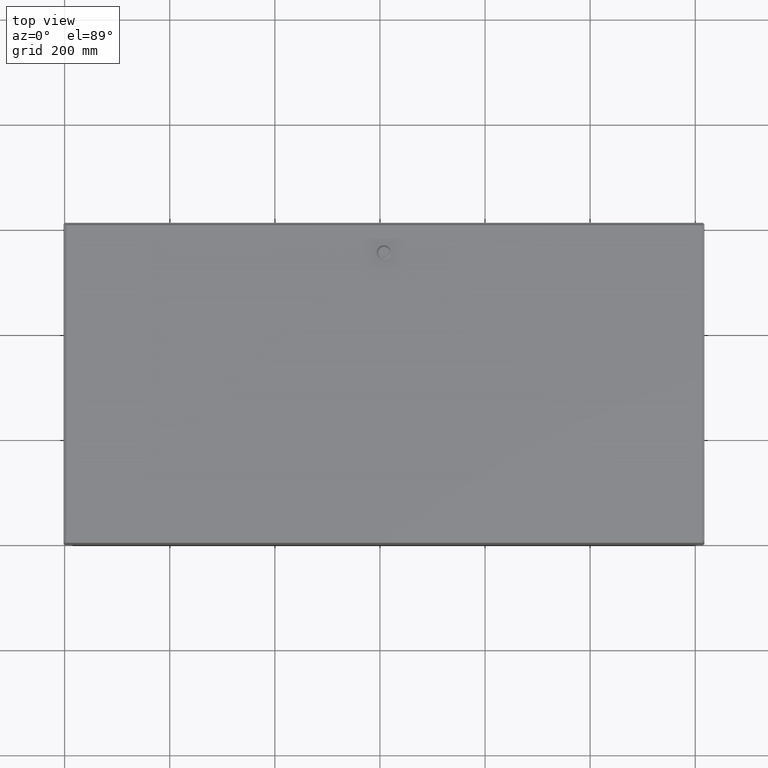
[diagram: clean part render]
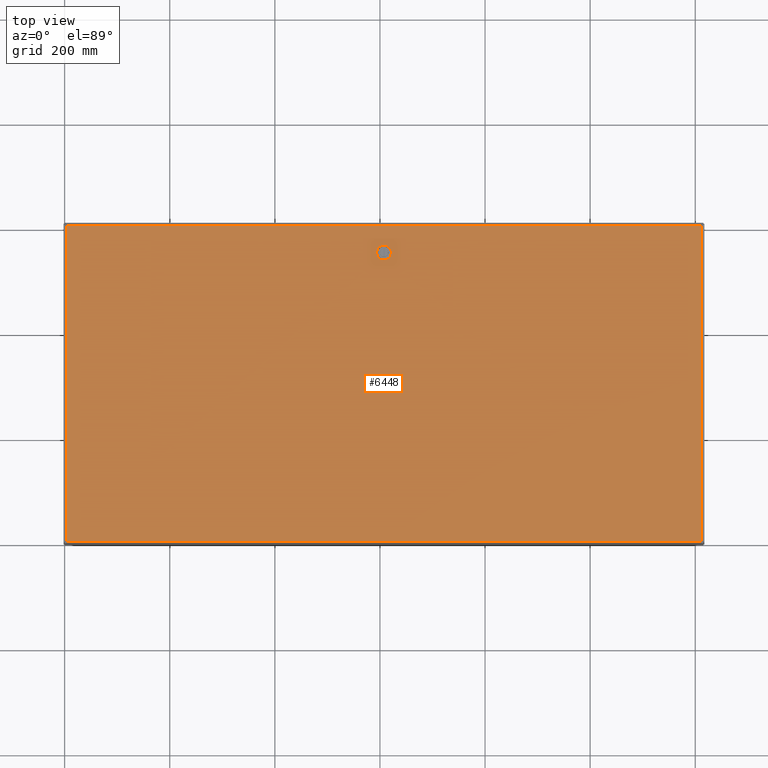
[diagram: same view with one face highlighted and labeled with its STEP entity id]
A machine part, top view. The second image highlights one B-rep face of the part: STEP entity #6448.
In plain terms, the highlighted planar face has unit normal (-0, -0, -1).
Its self-contained STEP definition (entity closure, byte-faithful):
#4778=CARTESIAN_POINT('',(2.337624081420708,24.274999999999999,0.0));
#4779=VERTEX_POINT('',#4778);
#4786=CARTESIAN_POINT('',(2.525000000000000,24.087624081420714,0.0));
#4787=VERTEX_POINT('',#4786);
#4788=CARTESIAN_POINT('',(2.125000000000003,23.874999999999996,0.0));
#4789=DIRECTION('',(0.0,0.0,1.0));
#4790=DIRECTION('',(-0.469368833158288,-0.883002207505523,0.0));
#4791=AXIS2_PLACEMENT_3D('',#4788,#4789,#4790);
#4792=CIRCLE('',#4791,0.453000000000000);
#4793=EDGE_CURVE('',#4787,#4779,#4792,.T.);
#4818=CARTESIAN_POINT('',(2.525000000000000,23.662375918579283,0.0));
#4819=VERTEX_POINT('',#4818);
#4820=CARTESIAN_POINT('',(2.524999999999999,23.662375918579283,0.0));
#4821=DIRECTION('',(0.0,1.0,0.0));
#4822=VECTOR('',#4821,0.425248162841431);
#4823=LINE('',#4820,#4822);
#4824=EDGE_CURVE('',#4819,#4787,#4823,.T.);
#4850=CARTESIAN_POINT('',(2.337624081420718,23.475000000000001,0.0));
#4851=VERTEX_POINT('',#4850);
#4852=CARTESIAN_POINT('',(2.125000000000003,23.874999999999996,0.0));
#4853=DIRECTION('',(0.0,0.0,1.0));
#4854=DIRECTION('',(-0.883002207505511,0.469368833158312,0.0));
#4855=AXIS2_PLACEMENT_3D('',#4852,#4853,#4854);
#4856=CIRCLE('',#4855,0.453000000000000);
#4857=EDGE_CURVE('',#4851,#4819,#4856,.T.);
#4882=CARTESIAN_POINT('',(1.912375918579288,23.475000000000001,0.0));
#4883=VERTEX_POINT('',#4882);
#4884=CARTESIAN_POINT('',(1.912375918579288,23.475000000000005,0.0));
#4885=DIRECTION('',(1.0,0.0,0.0));
#4886=VECTOR('',#4885,0.425248162841430);
#4887=LINE('',#4884,#4886);
#4888=EDGE_CURVE('',#4883,#4851,#4887,.T.);
#4914=CARTESIAN_POINT('',(1.725000000000000,23.662375918579297,0.0));
#4915=VERTEX_POINT('',#4914);
#4916=CARTESIAN_POINT('',(2.125000000000003,23.874999999999996,0.0));
#4917=DIRECTION('',(0.0,0.0,1.0));
#4918=DIRECTION('',(0.469368833158311,0.883002207505511,0.0));
#4919=AXIS2_PLACEMENT_3D('',#4916,#4917,#4918);
#4920=CIRCLE('',#4919,0.453000000000000);
#4921=EDGE_CURVE('',#4915,#4883,#4920,.T.);
#4946=CARTESIAN_POINT('',(1.725000000000000,24.087624081420699,0.0));
#4947=VERTEX_POINT('',#4946);
#4948=CARTESIAN_POINT('',(1.725000000000000,24.087624081420699,0.0));
#4949=DIRECTION('',(0.0,-1.0,0.0));
#4950=VECTOR('',#4949,0.425248162841402);
#4951=LINE('',#4948,#4950);
#4952=EDGE_CURVE('',#4947,#4915,#4951,.T.);
#4978=CARTESIAN_POINT('',(1.912375918579299,24.274999999999999,0.0));
#4979=VERTEX_POINT('',#4978);
#4980=CARTESIAN_POINT('',(2.125000000000003,23.874999999999996,0.0));
#4981=DIRECTION('',(0.0,0.0,1.0));
#4982=DIRECTION('',(0.883002207505527,-0.469368833158281,0.0));
#4983=AXIS2_PLACEMENT_3D('',#4980,#4981,#4982);
#4984=CIRCLE('',#4983,0.453000000000000);
#4985=EDGE_CURVE('',#4979,#4947,#4984,.T.);
#5008=CARTESIAN_POINT('',(2.337624081420707,24.274999999999999,0.0));
#5009=DIRECTION('',(-1.0,0.0,0.0));
#5010=VECTOR('',#5009,0.425248162841408);
#5011=LINE('',#5008,#5010);
#5012=EDGE_CURVE('',#4779,#4979,#5011,.T.);
#5456=CARTESIAN_POINT('',(23.769750000000002,0.105250000000001,-2.185478E-017));
#5457=VERTEX_POINT('',#5456);
#5468=CARTESIAN_POINT('',(23.769749999999995,47.644750000000009,-3.278218E-017));
#5469=VERTEX_POINT('',#5468);
#5470=CARTESIAN_POINT('',(23.769749999999991,47.644750000000016,0.0));
#5471=DIRECTION('',(0.0,-1.0,0.0));
#5472=VECTOR('',#5471,47.539500000000011);
#5473=LINE('',#5470,#5472);
#5474=EDGE_CURVE('',#5469,#5457,#5473,.T.);
#5626=CARTESIAN_POINT('',(0.105250000000008,0.105250000000007,-2.185478E-017));
#5627=VERTEX_POINT('',#5626);
#5638=CARTESIAN_POINT('',(23.769750000000002,0.105250000000001,0.0));
#5639=DIRECTION('',(-1.0,0.0,0.0));
#5640=VECTOR('',#5639,23.664499999999993);
#5641=LINE('',#5638,#5640);
#5642=EDGE_CURVE('',#5457,#5627,#5641,.T.);
#5903=CARTESIAN_POINT('',(0.105249999999983,47.644750000000009,-3.278218E-017));
#5904=VERTEX_POINT('',#5903);
#5915=CARTESIAN_POINT('',(0.105250000000008,0.105250000000007,0.0));
#5916=DIRECTION('',(0.0,1.0,0.0));
#5917=VECTOR('',#5916,47.539500000000004);
#5918=LINE('',#5915,#5917);
#5919=EDGE_CURVE('',#5627,#5904,#5918,.T.);
#6184=CARTESIAN_POINT('',(0.105249999999983,47.644750000000009,0.0));
#6185=DIRECTION('',(1.0,0.0,0.0));
#6186=VECTOR('',#6185,23.664500000000011);
#6187=LINE('',#6184,#6186);
#6188=EDGE_CURVE('',#5904,#5469,#6187,.T.);
#6427=CARTESIAN_POINT('',(11.937499999999993,23.875000000000011,0.0));
#6428=DIRECTION('',(0.0,0.0,1.0));
#6429=DIRECTION('',(1.0,0.0,0.0));
#6430=AXIS2_PLACEMENT_3D('',#6427,#6428,#6429);
#6431=PLANE('',#6430);
#6432=ORIENTED_EDGE('',*,*,#5474,.T.);
#6433=ORIENTED_EDGE('',*,*,#5642,.T.);
#6434=ORIENTED_EDGE('',*,*,#5919,.T.);
#6435=ORIENTED_EDGE('',*,*,#6188,.T.);
#6436=EDGE_LOOP('',(#6432,#6433,#6434,#6435));
#6437=FACE_OUTER_BOUND('',#6436,.T.);
#6438=ORIENTED_EDGE('',*,*,#4793,.T.);
#6439=ORIENTED_EDGE('',*,*,#5012,.T.);
#6440=ORIENTED_EDGE('',*,*,#4985,.T.);
#6441=ORIENTED_EDGE('',*,*,#4952,.T.);
#6442=ORIENTED_EDGE('',*,*,#4921,.T.);
#6443=ORIENTED_EDGE('',*,*,#4888,.T.);
#6444=ORIENTED_EDGE('',*,*,#4857,.T.);
#6445=ORIENTED_EDGE('',*,*,#4824,.T.);
#6446=EDGE_LOOP('',(#6438,#6439,#6440,#6441,#6442,#6443,#6444,#6445));
#6447=FACE_BOUND('',#6446,.T.);
#6448=ADVANCED_FACE('',(#6437,#6447),#6431,.F.);